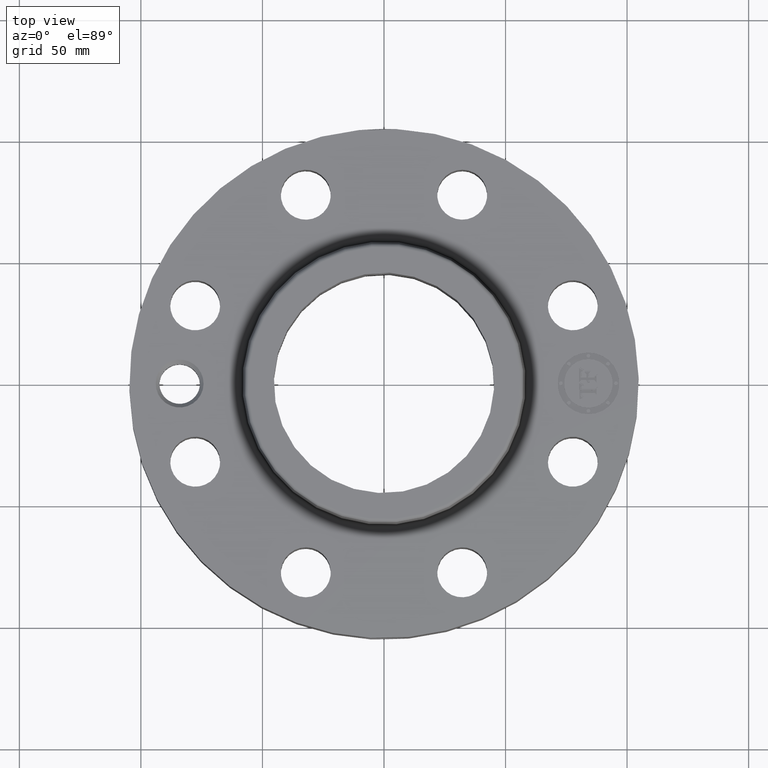
[diagram: clean part render]
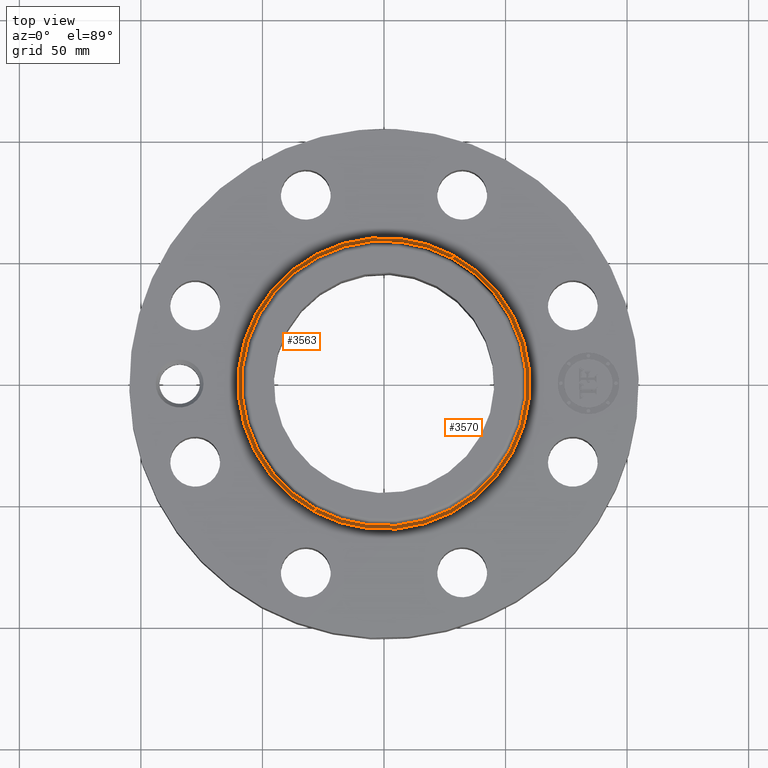
[diagram: same view with one multi-face feature highlighted, each face labeled with its STEP entity id]
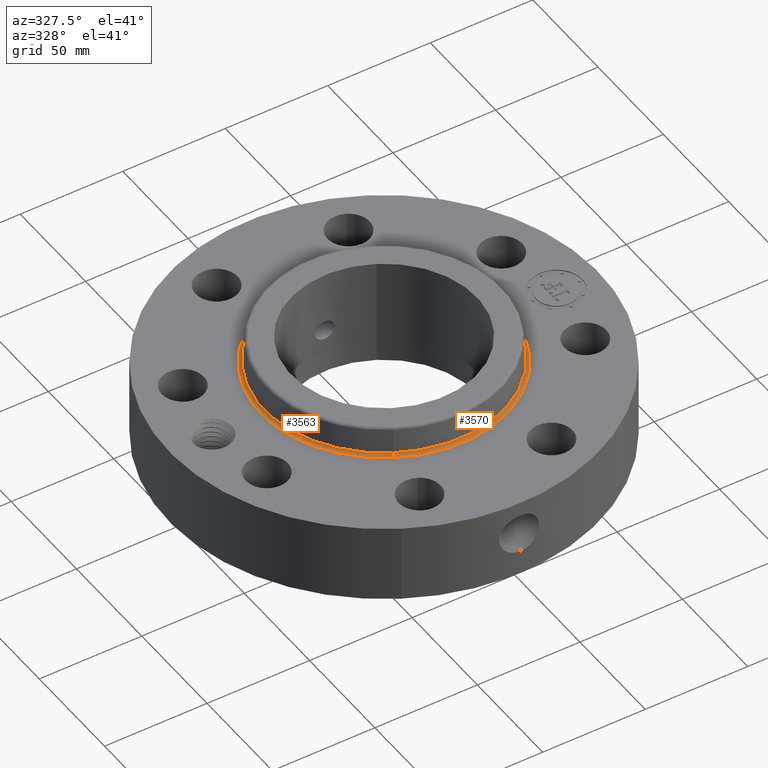
[diagram: same view with one multi-face feature highlighted, each face labeled with its STEP entity id]
A machine part, top view. The highlighted faces form ONE feature: a constant-radius fillet chain: 2 tangent blend faces with common blend radius 1.524 mm. The faces share edges in the B-rep.
A second angle (auxiliary view) of the same feature is appended — it is thin or edge-on in the first view.
Their STEP definitions:
[1] entity #3563 (Torus):
#2201=AXIS2_PLACEMENT_3D('Circle Axis2P3D',#2199,#2200,$) ;
#2313=AXIS2_PLACEMENT_3D('Circle Axis2P3D',#2311,#2312,$) ;
#3545=AXIS2_PLACEMENT_3D('Torus Axis2P3D',#3542,#3543,#3544) ;
#3549=AXIS2_PLACEMENT_3D('Circle Axis2P3D',#3547,#3548,$) ;
#3554=AXIS2_PLACEMENT_3D('Circle Axis2P3D',#3552,#3553,$) ;
#2199=CARTESIAN_POINT('Axis2P3D Location',(0.,0.,1.61477065544)) ;
#2203=CARTESIAN_POINT('Vertex',(-1.1051756774,-2.02301050781,1.61477065544)) ;
#2205=CARTESIAN_POINT('Vertex',(1.1051756774,2.02301050781,1.61477065544)) ;
#2311=CARTESIAN_POINT('Axis2P3D Location',(0.,0.,1.56000000001)) ;
#2315=CARTESIAN_POINT('Vertex',(-1.13383174818,-2.07546509353,1.56000000001)) ;
#2317=CARTESIAN_POINT('Vertex',(1.13383174818,2.07546509353,1.56000000001)) ;
#3542=CARTESIAN_POINT('Axis2P3D Location',(0.,0.,1.62000000001)) ;
#3547=CARTESIAN_POINT('Axis2P3D Location',(-1.13383174818,-2.07546509353,1.62000000001)) ;
#3552=CARTESIAN_POINT('Axis2P3D Location',(1.13383174818,2.07546509353,1.62000000001)) ;
#2200=DIRECTION('Axis2P3D Direction',(0.,0.,-0.0393700787402)) ;
#2312=DIRECTION('Axis2P3D Direction',(0.,0.,-0.0393700787402)) ;
#3543=DIRECTION('Axis2P3D Direction',(0.,0.,-0.0393700787402)) ;
#3544=DIRECTION('Axis2P3D XDirection',(0.0188750212049,0.0345504945626,0.)) ;
#3548=DIRECTION('Axis2P3D Direction',(0.0345504945626,-0.0188750212049,0.)) ;
#3553=DIRECTION('Axis2P3D Direction',(-0.0345504945626,0.0188750212049,0.)) ;
#3558=ORIENTED_EDGE('',*,*,#2319,.F.) ;
#3559=ORIENTED_EDGE('',*,*,#3551,.T.) ;
#3560=ORIENTED_EDGE('',*,*,#2207,.T.) ;
#3561=ORIENTED_EDGE('',*,*,#3556,.F.) ;
#3563=ADVANCED_FACE('PartBody',(#3562),#3546,.F.) ;
#2202=CIRCLE('generated circle',#2201,2.30520818856) ;
#2314=CIRCLE('generated circle',#2313,2.36497987045) ;
#3550=CIRCLE('generated circle',#3549,0.0600000000002) ;
#3555=CIRCLE('generated circle',#3554,0.0600000000002) ;
#3546=TOROIDAL_SURFACE('homeo Torus',#3545,2.36497987045,0.0600000000002) ;
#2207=EDGE_CURVE('',#2204,#2206,#2202,.T.) ;
#2319=EDGE_CURVE('',#2316,#2318,#2314,.T.) ;
#3551=EDGE_CURVE('',#2316,#2204,#3550,.T.) ;
#3556=EDGE_CURVE('',#2318,#2206,#3555,.T.) ;
#3557=EDGE_LOOP('',(#3558,#3559,#3560,#3561)) ;
#3562=FACE_OUTER_BOUND('',#3557,.T.) ;
#2204=VERTEX_POINT('',#2203) ;
#2206=VERTEX_POINT('',#2205) ;
#2316=VERTEX_POINT('',#2315) ;
#2318=VERTEX_POINT('',#2317) ;
[2] entity #3570 (Torus):
#2227=AXIS2_PLACEMENT_3D('Circle Axis2P3D',#2225,#2226,$) ;
#2322=AXIS2_PLACEMENT_3D('Circle Axis2P3D',#2320,#2321,$) ;
#3545=AXIS2_PLACEMENT_3D('Torus Axis2P3D',#3542,#3543,#3544) ;
#3549=AXIS2_PLACEMENT_3D('Circle Axis2P3D',#3547,#3548,$) ;
#3554=AXIS2_PLACEMENT_3D('Circle Axis2P3D',#3552,#3553,$) ;
#2203=CARTESIAN_POINT('Vertex',(-1.1051756774,-2.02301050781,1.61477065544)) ;
#2205=CARTESIAN_POINT('Vertex',(1.1051756774,2.02301050781,1.61477065544)) ;
#2225=CARTESIAN_POINT('Axis2P3D Location',(0.,0.,1.61477065544)) ;
#2315=CARTESIAN_POINT('Vertex',(-1.13383174818,-2.07546509353,1.56000000001)) ;
#2317=CARTESIAN_POINT('Vertex',(1.13383174818,2.07546509353,1.56000000001)) ;
#2320=CARTESIAN_POINT('Axis2P3D Location',(0.,0.,1.56000000001)) ;
#3542=CARTESIAN_POINT('Axis2P3D Location',(0.,0.,1.62000000001)) ;
#3547=CARTESIAN_POINT('Axis2P3D Location',(-1.13383174818,-2.07546509353,1.62000000001)) ;
#3552=CARTESIAN_POINT('Axis2P3D Location',(1.13383174818,2.07546509353,1.62000000001)) ;
#2226=DIRECTION('Axis2P3D Direction',(0.,0.,-0.0393700787402)) ;
#2321=DIRECTION('Axis2P3D Direction',(0.,0.,-0.0393700787402)) ;
#3543=DIRECTION('Axis2P3D Direction',(0.,0.,-0.0393700787402)) ;
#3544=DIRECTION('Axis2P3D XDirection',(0.0188750212049,0.0345504945626,0.)) ;
#3548=DIRECTION('Axis2P3D Direction',(0.0345504945626,-0.0188750212049,0.)) ;
#3553=DIRECTION('Axis2P3D Direction',(-0.0345504945626,0.0188750212049,0.)) ;
#3565=ORIENTED_EDGE('',*,*,#2324,.F.) ;
#3566=ORIENTED_EDGE('',*,*,#3556,.T.) ;
#3567=ORIENTED_EDGE('',*,*,#2229,.T.) ;
#3568=ORIENTED_EDGE('',*,*,#3551,.F.) ;
#3570=ADVANCED_FACE('PartBody',(#3569),#3546,.F.) ;
#2228=CIRCLE('generated circle',#2227,2.30520818856) ;
#2323=CIRCLE('generated circle',#2322,2.36497987045) ;
#3550=CIRCLE('generated circle',#3549,0.0600000000002) ;
#3555=CIRCLE('generated circle',#3554,0.0600000000002) ;
#3546=TOROIDAL_SURFACE('homeo Torus',#3545,2.36497987045,0.0600000000002) ;
#2229=EDGE_CURVE('',#2206,#2204,#2228,.T.) ;
#2324=EDGE_CURVE('',#2318,#2316,#2323,.T.) ;
#3551=EDGE_CURVE('',#2316,#2204,#3550,.T.) ;
#3556=EDGE_CURVE('',#2318,#2206,#3555,.T.) ;
#3564=EDGE_LOOP('',(#3565,#3566,#3567,#3568)) ;
#3569=FACE_OUTER_BOUND('',#3564,.T.) ;
#2204=VERTEX_POINT('',#2203) ;
#2206=VERTEX_POINT('',#2205) ;
#2316=VERTEX_POINT('',#2315) ;
#2318=VERTEX_POINT('',#2317) ;